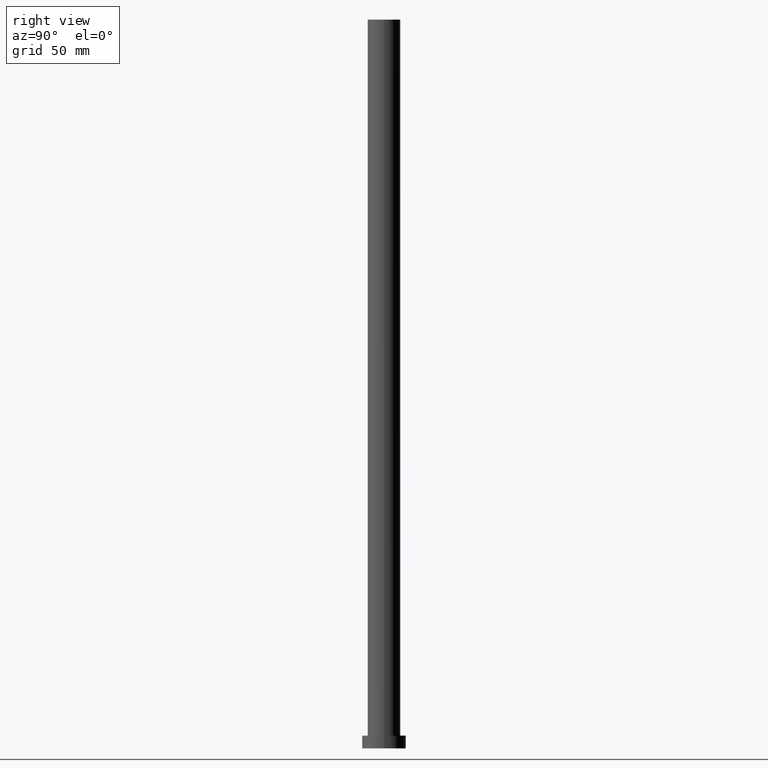
[diagram: clean part render]
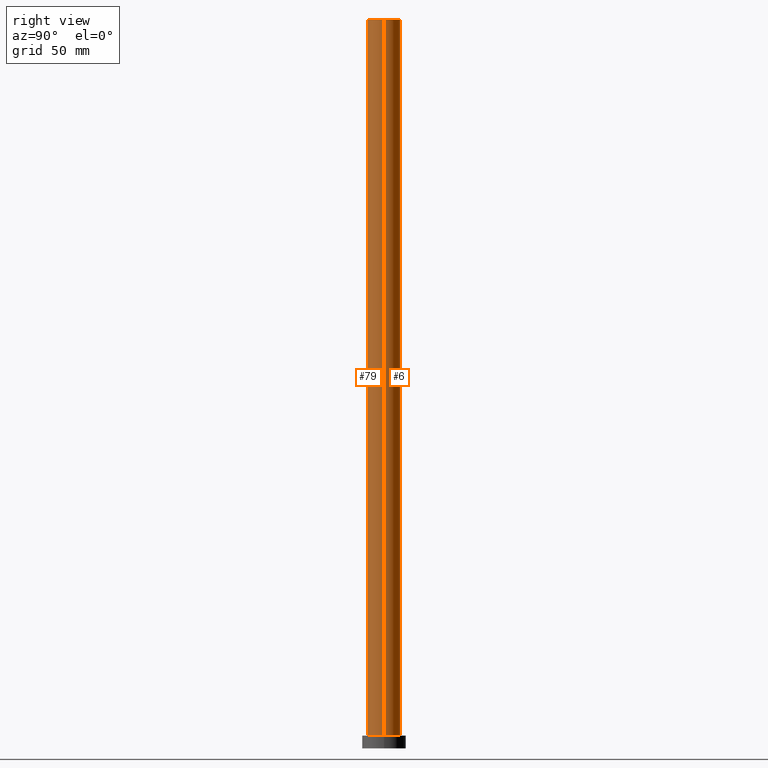
[diagram: same view with one multi-face feature highlighted, each face labeled with its STEP entity id]
A machine part, right view. The highlighted faces form ONE feature: a constant-radius fillet chain: 2 tangent blend faces with common blend radius 9 mm. The faces share edges in the B-rep.
Their STEP definitions:
[1] entity #6 (Cylinder):
#6 = ADVANCED_FACE ( 'NONE', ( #198 ), #40, .T. ) ;
#7 = LINE ( 'NONE', #135, #23 ) ;
#23 = VECTOR ( 'NONE', #169, 1000.000000000000000 ) ;
#27 = AXIS2_PLACEMENT_3D ( 'NONE', #244, #110, #58 ) ;
#29 = EDGE_CURVE ( 'NONE', #65, #138, #34, .T. ) ;
#34 = CIRCLE ( 'NONE', #229, 9.000000000000000000 ) ;
#39 = EDGE_LOOP ( 'NONE', ( #216, #162, #59, #117 ) ) ;
#40 = CYLINDRICAL_SURFACE ( 'NONE', #157, 9.000000000000000000 ) ;
#45 = VERTEX_POINT ( 'NONE', #104 ) ;
#58 = DIRECTION ( 'NONE',  ( 1.000000000000000000, 0.000000000000000000, 0.000000000000000000 ) ) ;
#59 = ORIENTED_EDGE ( 'NONE', *, *, #29, .T. ) ;
#65 = VERTEX_POINT ( 'NONE', #210 ) ;
#73 = VECTOR ( 'NONE', #95, 1000.000000000000000 ) ;
#74 = LINE ( 'NONE', #152, #73 ) ;
#82 = DIRECTION ( 'NONE',  ( 1.000000000000000000, 0.000000000000000000, 0.000000000000000000 ) ) ;
#95 = DIRECTION ( 'NONE',  ( -0.000000000000000000, -0.000000000000000000, -1.000000000000000000 ) ) ;
#102 = DIRECTION ( 'NONE',  ( 0.000000000000000000, 0.000000000000000000, 1.000000000000000000 ) ) ;
#104 = CARTESIAN_POINT ( 'NONE',  ( -9.000000000000000000, 0.000000000000000000, 400.0000000000000000 ) ) ;
#107 = EDGE_CURVE ( 'NONE', #231, #45, #211, .T. ) ;
#110 = DIRECTION ( 'NONE',  ( 0.000000000000000000, 0.000000000000000000, 1.000000000000000000 ) ) ;
#112 = EDGE_CURVE ( 'NONE', #231, #65, #7, .T. ) ;
#117 = ORIENTED_EDGE ( 'NONE', *, *, #255, .F. ) ;
#125 = DIRECTION ( 'NONE',  ( -0.000000000000000000, -0.000000000000000000, -1.000000000000000000 ) ) ;
#135 = CARTESIAN_POINT ( 'NONE',  ( 9.000000000000000000, 1.102182119232617714E-15, 400.0000000000000000 ) ) ;
#138 = VERTEX_POINT ( 'NONE', #248 ) ;
#152 = CARTESIAN_POINT ( 'NONE',  ( -9.000000000000000000, 0.000000000000000000, 400.0000000000000000 ) ) ;
#157 = AXIS2_PLACEMENT_3D ( 'NONE', #213, #125, #164 ) ;
#162 = ORIENTED_EDGE ( 'NONE', *, *, #112, .T. ) ;
#164 = DIRECTION ( 'NONE',  ( -1.000000000000000000, 0.000000000000000000, 0.000000000000000000 ) ) ;
#169 = DIRECTION ( 'NONE',  ( -0.000000000000000000, -0.000000000000000000, -1.000000000000000000 ) ) ;
#198 = FACE_OUTER_BOUND ( 'NONE', #39, .T. ) ;
#206 = CARTESIAN_POINT ( 'NONE',  ( 9.000000000000000000, 1.102182119232617714E-15, 400.0000000000000000 ) ) ;
#210 = CARTESIAN_POINT ( 'NONE',  ( 9.000000000000000000, 1.102182119232617714E-15, 7.000000000000000000 ) ) ;
#211 = CIRCLE ( 'NONE', #27, 9.000000000000000000 ) ;
#213 = CARTESIAN_POINT ( 'NONE',  ( 0.000000000000000000, 0.000000000000000000, 400.0000000000000000 ) ) ;
#216 = ORIENTED_EDGE ( 'NONE', *, *, #107, .F. ) ;
#229 = AXIS2_PLACEMENT_3D ( 'NONE', #253, #102, #82 ) ;
#231 = VERTEX_POINT ( 'NONE', #206 ) ;
#244 = CARTESIAN_POINT ( 'NONE',  ( 0.000000000000000000, 0.000000000000000000, 400.0000000000000000 ) ) ;
#248 = CARTESIAN_POINT ( 'NONE',  ( -9.000000000000000000, 0.000000000000000000, 7.000000000000000000 ) ) ;
#253 = CARTESIAN_POINT ( 'NONE',  ( 0.000000000000000000, 0.000000000000000000, 7.000000000000000000 ) ) ;
#255 = EDGE_CURVE ( 'NONE', #45, #138, #74, .T. ) ;
[2] entity #79 (Cylinder):
#4 = CIRCLE ( 'NONE', #246, 9.000000000000000000 ) ;
#7 = LINE ( 'NONE', #135, #23 ) ;
#9 = DIRECTION ( 'NONE',  ( 1.000000000000000000, 0.000000000000000000, 0.000000000000000000 ) ) ;
#23 = VECTOR ( 'NONE', #169, 1000.000000000000000 ) ;
#26 = CARTESIAN_POINT ( 'NONE',  ( 0.000000000000000000, 0.000000000000000000, 400.0000000000000000 ) ) ;
#30 = DIRECTION ( 'NONE',  ( -1.000000000000000000, 0.000000000000000000, 0.000000000000000000 ) ) ;
#33 = DIRECTION ( 'NONE',  ( -0.000000000000000000, -0.000000000000000000, -1.000000000000000000 ) ) ;
#36 = ORIENTED_EDGE ( 'NONE', *, *, #238, .F. ) ;
#45 = VERTEX_POINT ( 'NONE', #104 ) ;
#47 = ORIENTED_EDGE ( 'NONE', *, *, #243, .T. ) ;
#53 = DIRECTION ( 'NONE',  ( 1.000000000000000000, 0.000000000000000000, 0.000000000000000000 ) ) ;
#65 = VERTEX_POINT ( 'NONE', #210 ) ;
#73 = VECTOR ( 'NONE', #95, 1000.000000000000000 ) ;
#74 = LINE ( 'NONE', #152, #73 ) ;
#76 = AXIS2_PLACEMENT_3D ( 'NONE', #77, #33, #30 ) ;
#77 = CARTESIAN_POINT ( 'NONE',  ( 0.000000000000000000, 0.000000000000000000, 400.0000000000000000 ) ) ;
#79 = ADVANCED_FACE ( 'NONE', ( #192 ), #189, .T. ) ;
#83 = AXIS2_PLACEMENT_3D ( 'NONE', #131, #187, #53 ) ;
#95 = DIRECTION ( 'NONE',  ( -0.000000000000000000, -0.000000000000000000, -1.000000000000000000 ) ) ;
#104 = CARTESIAN_POINT ( 'NONE',  ( -9.000000000000000000, 0.000000000000000000, 400.0000000000000000 ) ) ;
#112 = EDGE_CURVE ( 'NONE', #231, #65, #7, .T. ) ;
#131 = CARTESIAN_POINT ( 'NONE',  ( 0.000000000000000000, 0.000000000000000000, 7.000000000000000000 ) ) ;
#135 = CARTESIAN_POINT ( 'NONE',  ( 9.000000000000000000, 1.102182119232617714E-15, 400.0000000000000000 ) ) ;
#138 = VERTEX_POINT ( 'NONE', #248 ) ;
#144 = ORIENTED_EDGE ( 'NONE', *, *, #112, .F. ) ;
#152 = CARTESIAN_POINT ( 'NONE',  ( -9.000000000000000000, 0.000000000000000000, 400.0000000000000000 ) ) ;
#169 = DIRECTION ( 'NONE',  ( -0.000000000000000000, -0.000000000000000000, -1.000000000000000000 ) ) ;
#181 = ORIENTED_EDGE ( 'NONE', *, *, #255, .T. ) ;
#187 = DIRECTION ( 'NONE',  ( 0.000000000000000000, 0.000000000000000000, 1.000000000000000000 ) ) ;
#189 = CYLINDRICAL_SURFACE ( 'NONE', #76, 9.000000000000000000 ) ;
#192 = FACE_OUTER_BOUND ( 'NONE', #194, .T. ) ;
#194 = EDGE_LOOP ( 'NONE', ( #144, #36, #181, #47 ) ) ;
#203 = CIRCLE ( 'NONE', #83, 9.000000000000000000 ) ;
#206 = CARTESIAN_POINT ( 'NONE',  ( 9.000000000000000000, 1.102182119232617714E-15, 400.0000000000000000 ) ) ;
#210 = CARTESIAN_POINT ( 'NONE',  ( 9.000000000000000000, 1.102182119232617714E-15, 7.000000000000000000 ) ) ;
#227 = DIRECTION ( 'NONE',  ( 0.000000000000000000, 0.000000000000000000, 1.000000000000000000 ) ) ;
#231 = VERTEX_POINT ( 'NONE', #206 ) ;
#238 = EDGE_CURVE ( 'NONE', #45, #231, #4, .T. ) ;
#243 = EDGE_CURVE ( 'NONE', #138, #65, #203, .T. ) ;
#246 = AXIS2_PLACEMENT_3D ( 'NONE', #26, #227, #9 ) ;
#248 = CARTESIAN_POINT ( 'NONE',  ( -9.000000000000000000, 0.000000000000000000, 7.000000000000000000 ) ) ;
#255 = EDGE_CURVE ( 'NONE', #45, #138, #74, .T. ) ;